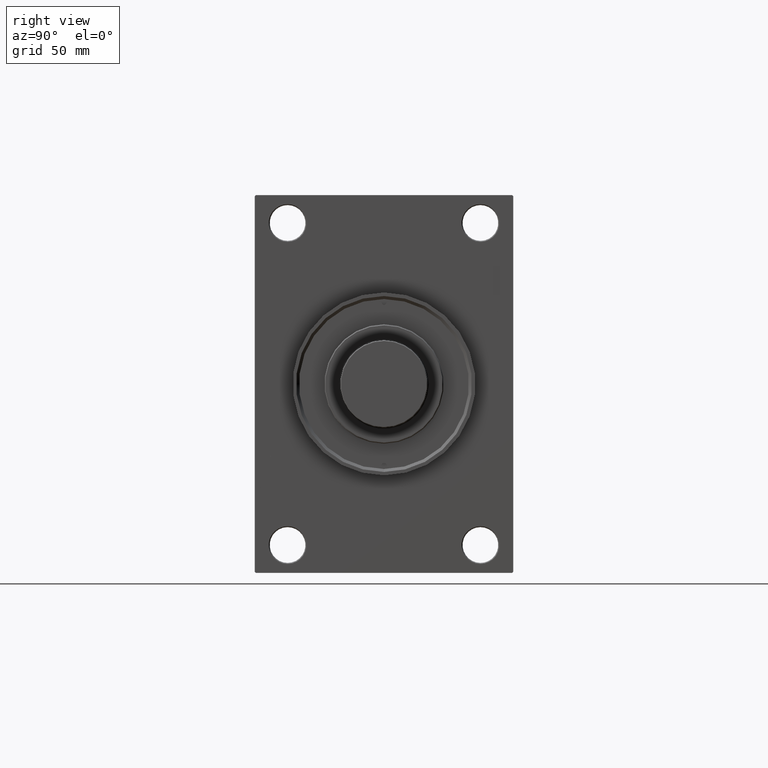
[diagram: clean part render]
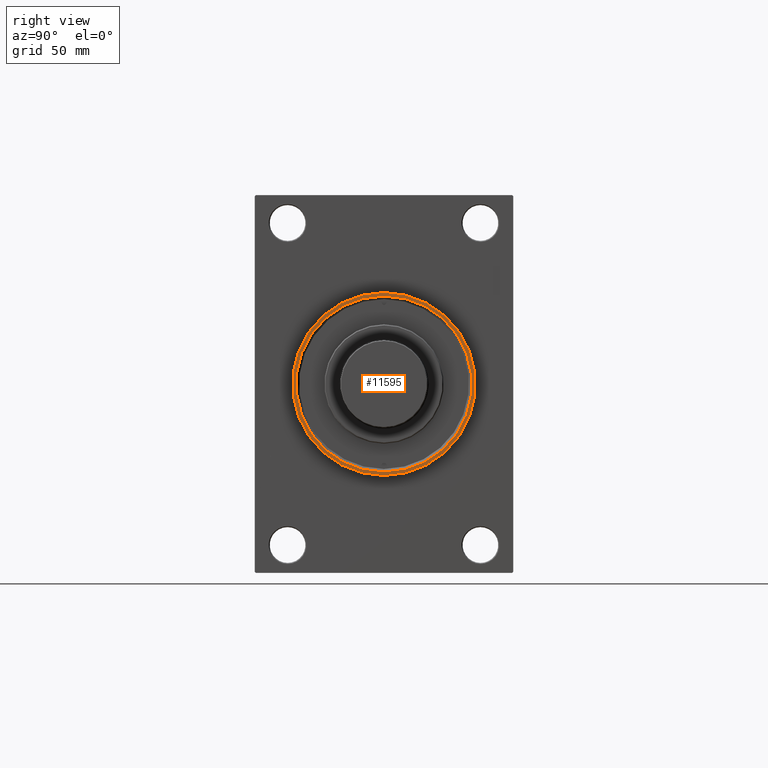
[diagram: same view with one face highlighted and labeled with its STEP entity id]
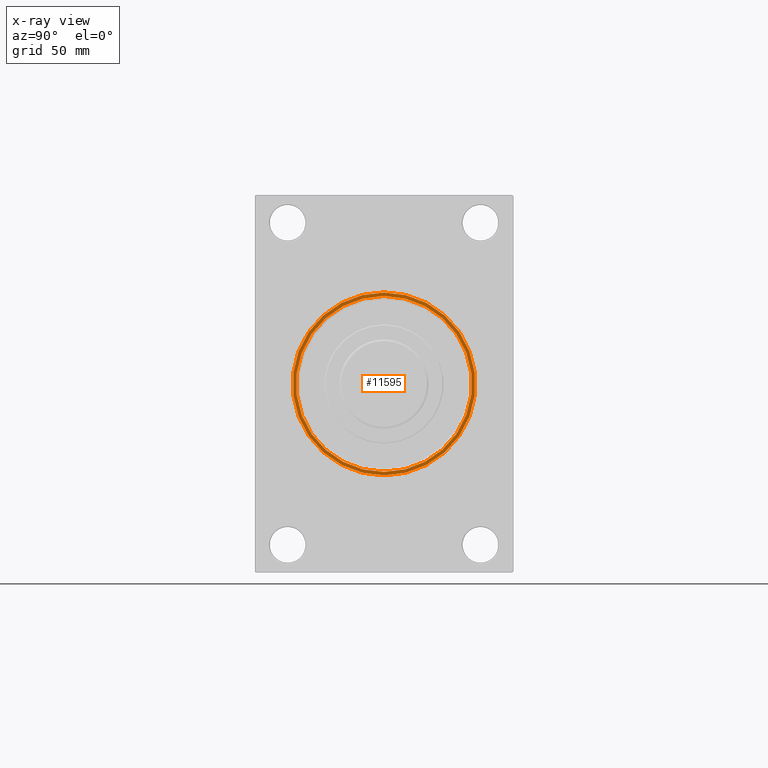
[diagram: x-ray of the same camera — body ghosted, the highlighted face saturated]
A machine part, right view. The second image highlights one B-rep face of the part: STEP entity #11595.
The next image is the same camera in x-ray: the body ghosted, the highlighted face saturated — about 0% of this face is hidden behind the body in this view.
In plain terms, the highlighted planar face has unit normal (1, 0, 0).
Its self-contained STEP definition (entity closure, byte-faithful):
#293 = VERTEX_POINT ( 'NONE', #21302 ) ;
#621 = DIRECTION ( 'NONE',  ( -1.000000000000000000, -0.000000000000000000, -0.000000000000000000 ) ) ;
#1296 = CARTESIAN_POINT ( 'NONE',  ( 187.9999999999999716, 5.633375276077824704E-15, -46.00000000000000000 ) ) ;
#4527 = VERTEX_POINT ( 'NONE', #44152 ) ;
#4783 = AXIS2_PLACEMENT_3D ( 'NONE', #4816, #30198, #30693 ) ;
#4816 = CARTESIAN_POINT ( 'NONE',  ( 187.9999999999999716, 0.000000000000000000, 0.000000000000000000 ) ) ;
#5404 = AXIS2_PLACEMENT_3D ( 'NONE', #14807, #621, #18952 ) ;
#6310 = DIRECTION ( 'NONE',  ( -1.000000000000000000, -0.000000000000000000, -0.000000000000000000 ) ) ;
#6698 = AXIS2_PLACEMENT_3D ( 'NONE', #24393, #6310, #9724 ) ;
#7851 = EDGE_CURVE ( 'NONE', #4527, #26152, #26439, .T. ) ;
#9724 = DIRECTION ( 'NONE',  ( 0.000000000000000000, 0.000000000000000000, -1.000000000000000000 ) ) ;
#11595 = ADVANCED_FACE ( 'NONE', ( #19202, #46739 ), #12367, .T. ) ;
#12367 = PLANE ( 'NONE',  #4783 ) ;
#14807 = CARTESIAN_POINT ( 'NONE',  ( 187.9999999999999716, 0.000000000000000000, 0.000000000000000000 ) ) ;
#15748 = EDGE_CURVE ( 'NONE', #37327, #293, #42347, .T. ) ;
#18298 = AXIS2_PLACEMENT_3D ( 'NONE', #44471, #32980, #47177 ) ;
#18952 = DIRECTION ( 'NONE',  ( 0.000000000000000000, 0.000000000000000000, -1.000000000000000000 ) ) ;
#19202 = FACE_BOUND ( 'NONE', #23709, .T. ) ;
#20529 = EDGE_CURVE ( 'NONE', #26152, #4527, #33181, .T. ) ;
#21267 = ORIENTED_EDGE ( 'NONE', *, *, #43167, .T. ) ;
#21302 = CARTESIAN_POINT ( 'NONE',  ( 187.9999999999999716, 0.000000000000000000, 46.00000000000000000 ) ) ;
#21439 = CIRCLE ( 'NONE', #18298, 46.00000000000000000 ) ;
#23709 = EDGE_LOOP ( 'NONE', ( #43433, #36172 ) ) ;
#24393 = CARTESIAN_POINT ( 'NONE',  ( 187.9999999999999716, 0.000000000000000000, 0.000000000000000000 ) ) ;
#24592 = CARTESIAN_POINT ( 'NONE',  ( 187.9999999999999716, 0.000000000000000000, 0.000000000000000000 ) ) ;
#25006 = CARTESIAN_POINT ( 'NONE',  ( 187.9999999999999716, 0.000000000000000000, -44.24999999999998579 ) ) ;
#26152 = VERTEX_POINT ( 'NONE', #25006 ) ;
#26439 = CIRCLE ( 'NONE', #5404, 44.24999999999998579 ) ;
#29063 = AXIS2_PLACEMENT_3D ( 'NONE', #24592, #35834, #46586 ) ;
#29645 = EDGE_LOOP ( 'NONE', ( #21267, #45205 ) ) ;
#30198 = DIRECTION ( 'NONE',  ( 1.000000000000000000, 0.000000000000000000, 0.000000000000000000 ) ) ;
#30693 = DIRECTION ( 'NONE',  ( 0.000000000000000000, 0.000000000000000000, -1.000000000000000000 ) ) ;
#32980 = DIRECTION ( 'NONE',  ( 1.000000000000000000, 0.000000000000000000, 0.000000000000000000 ) ) ;
#33181 = CIRCLE ( 'NONE', #6698, 44.24999999999998579 ) ;
#35834 = DIRECTION ( 'NONE',  ( 1.000000000000000000, 0.000000000000000000, 0.000000000000000000 ) ) ;
#36172 = ORIENTED_EDGE ( 'NONE', *, *, #7851, .T. ) ;
#37327 = VERTEX_POINT ( 'NONE', #1296 ) ;
#42347 = CIRCLE ( 'NONE', #29063, 46.00000000000000000 ) ;
#43167 = EDGE_CURVE ( 'NONE', #293, #37327, #21439, .T. ) ;
#43433 = ORIENTED_EDGE ( 'NONE', *, *, #20529, .T. ) ;
#44152 = CARTESIAN_POINT ( 'NONE',  ( 187.9999999999999716, 5.419062086227035828E-15, 44.24999999999998579 ) ) ;
#44471 = CARTESIAN_POINT ( 'NONE',  ( 187.9999999999999716, 0.000000000000000000, 0.000000000000000000 ) ) ;
#45205 = ORIENTED_EDGE ( 'NONE', *, *, #15748, .T. ) ;
#46586 = DIRECTION ( 'NONE',  ( 0.000000000000000000, 0.000000000000000000, -1.000000000000000000 ) ) ;
#46739 = FACE_OUTER_BOUND ( 'NONE', #29645, .T. ) ;
#47177 = DIRECTION ( 'NONE',  ( 0.000000000000000000, 0.000000000000000000, -1.000000000000000000 ) ) ;